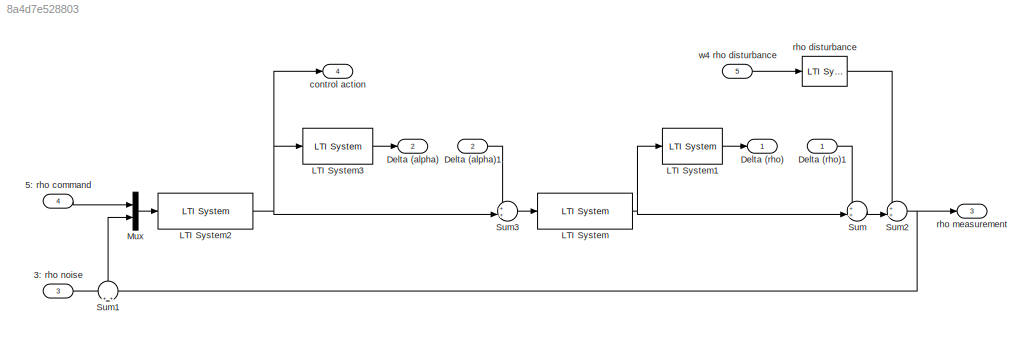
MODEL slx_8a4d7e528803
KIND model
BLOCK [Inport] 3: rho noise
  IconDisplay = Port number
  Port = 3
BLOCK [Inport] 5: rho command
  IconDisplay = Port number
  Port = 4
BLOCK [Outport] Delta (alpha)
  IconDisplay = Port number
  Port = 2
BLOCK [Inport] Delta (alpha)1
  IconDisplay = Port number
  Port = 2
BLOCK [Outport] Delta (rho)
  IconDisplay = Port number
BLOCK [Inport] Delta (rho)1
  IconDisplay = Port number
BLOCK [Reference] LTI System  REF=cstblocks/LTI System
  IC = []
  Ports = [1, 1]
  SourceBlock = cstblocks/LTI System
  SourceType = LTI Block
  sys = P_car
BLOCK [Reference] LTI System1  REF=cstblocks/LTI System
  IC = []
  Ports = [1, 1]
  SourceBlock = cstblocks/LTI System
  SourceType = LTI Block
  sys = W_rho
BLOCK [Reference] LTI System2  REF=cstblocks/LTI System
  IC = []
  Ports = [1, 1]
  SourceBlock = cstblocks/LTI System
  SourceType = LTI Block
  sys = K_sim
BLOCK [Reference] LTI System3  REF=cstblocks/LTI System
  IC = []
  Ports = [1, 1]
  SourceBlock = cstblocks/LTI System
  SourceType = LTI Block
  sys = W_alpha
BLOCK [Mux] Mux
  DisplayOption = bar
  Inputs = 2
  Ports = [2, 1]
BLOCK [Sum] Sum
  IconShape = round
  InputSameDT = off
  Inputs = ++|
  OutDataTypeStr = Inherit: Inherit via internal rule
  Ports = [2, 1]
  SaturateOnIntegerOverflow = off
BLOCK [Sum] Sum1
  IconShape = round
  InputSameDT = off
  OutDataTypeStr = Inherit: Inherit via internal rule
  Ports = [2, 1]
  SaturateOnIntegerOverflow = off
BLOCK [Sum] Sum2
  IconShape = round
  InputSameDT = off
  Inputs = ++|
  OutDataTypeStr = Inherit: Inherit via internal rule
  Ports = [2, 1]
  SaturateOnIntegerOverflow = off
BLOCK [Sum] Sum3
  IconShape = round
  InputSameDT = off
  Inputs = ++|
  OutDataTypeStr = Inherit: Inherit via internal rule
  Ports = [2, 1]
  SaturateOnIntegerOverflow = off
BLOCK [Outport] control action
  IconDisplay = Port number
  Port = 4
BLOCK [Reference] rho disturbance  REF=cstblocks/LTI System
  IC = []
  Ports = [1, 1]
  SourceBlock = cstblocks/LTI System
  SourceType = LTI Block
  sys = W_rhod
BLOCK [Outport] rho measurement
  IconDisplay = Port number
  Port = 3
BLOCK [Inport] w4 rho disturbance
  IconDisplay = Port number
  Port = 5
LINE 3: rho noise:1 -> Sum1:1
LINE 5: rho command:1 -> Mux:1
LINE Delta (alpha)1:1 -> Sum3:1
LINE Delta (rho)1:1 -> Sum:1
LINE LTI System1:1 -> Delta (rho):1
NET LTI System2:1 -> LTI System3:1, Sum3:2, control action:1
LINE LTI System3:1 -> Delta (alpha):1
NET LTI System:1 -> LTI System1:1, Sum:2
LINE Mux:1 -> LTI System2:1
LINE Sum1:1 -> Mux:2
NET Sum2:1 -> Sum1:2, rho measurement:1
LINE Sum3:1 -> LTI System:1
LINE Sum:1 -> Sum2:2
LINE rho disturbance:1 -> Sum2:1
LINE w4 rho disturbance:1 -> rho disturbance:1
note: NET lines group one-source signal fan-out (src -> all destinations, sorted); 1:1 wires keep LINE
